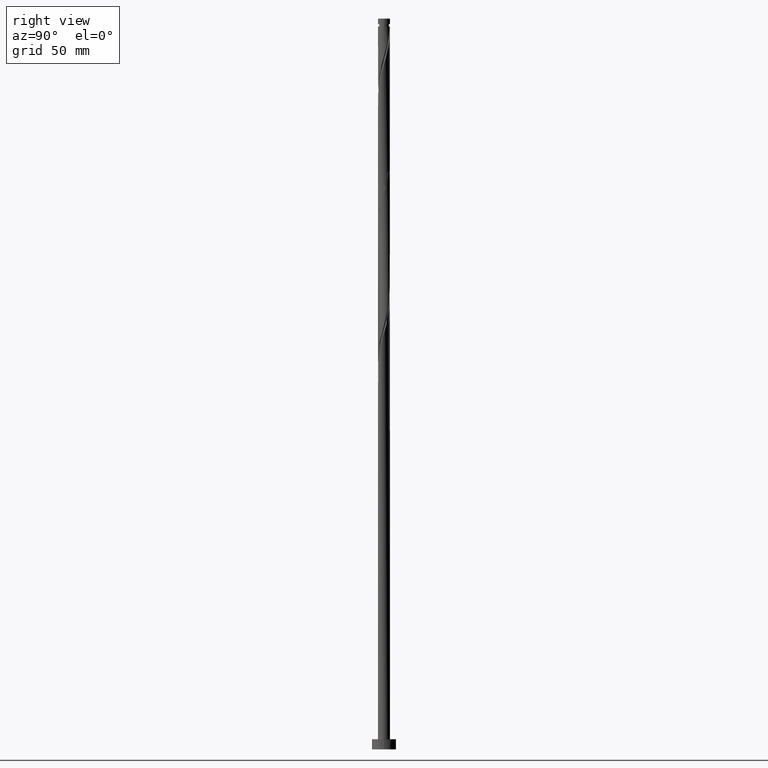
[diagram: clean part render]
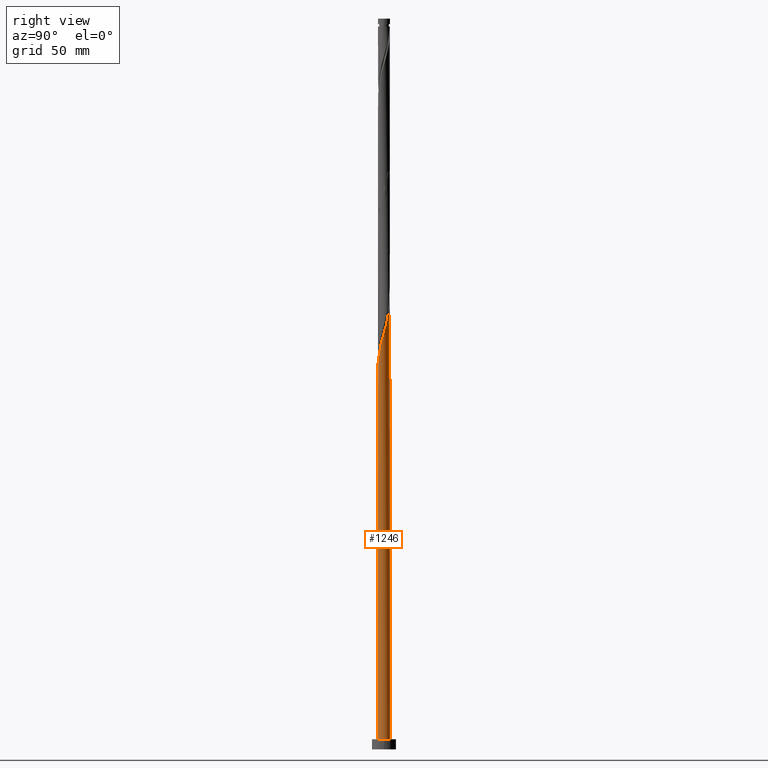
[diagram: same view with one face highlighted and labeled with its STEP entity id]
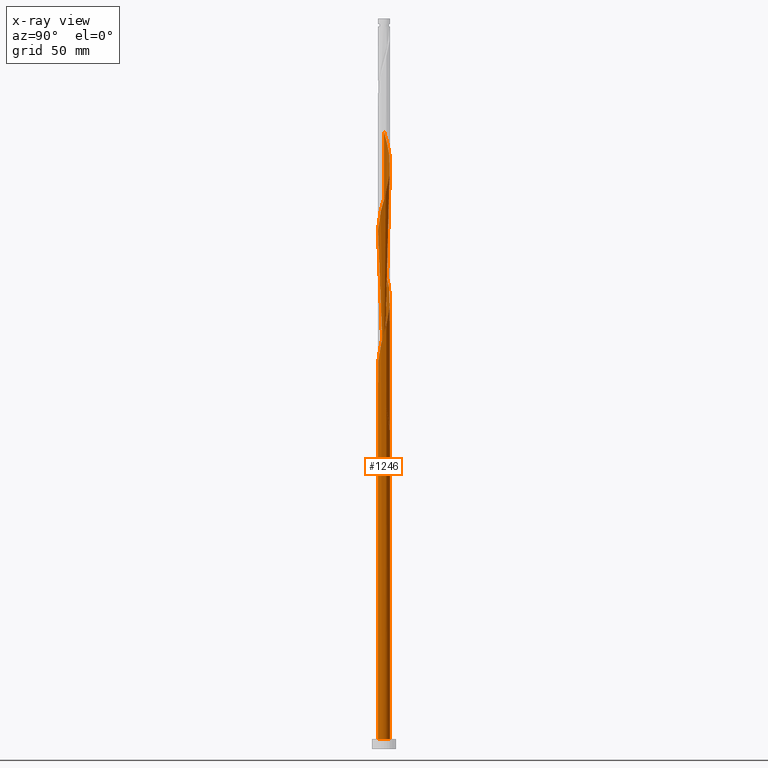
[diagram: x-ray of the same camera — body ghosted, the highlighted face saturated]
A machine part, right view. The second image highlights one B-rep face of the part: STEP entity #1246.
The next image is the same camera in x-ray: the body ghosted, the highlighted face saturated — about 0% of this face is hidden behind the body in this view.
In plain terms, the highlighted cylindrical surface (bore or boss wall) has radius 3 mm, axis along (-0, -0, -1).
Its self-contained STEP definition (entity closure, byte-faithful):
#6 = CARTESIAN_POINT ( 'NONE',  ( 1.484415317302711257, -2.626010904050889661, 261.6444745492087236 ) ) ;
#18 = CARTESIAN_POINT ( 'NONE',  ( -2.986297077045553916, -0.2864083930844389947, 240.5333634380976378 ) ) ;
#21 = CARTESIAN_POINT ( 'NONE',  ( -2.211065689225174768, 2.027606598413813632, 164.9778078825420096 ) ) ;
#28 =( BOUNDED_CURVE ( )  B_SPLINE_CURVE ( 2, ( #873, #124, #140, #842, #1302, #1420, #1016, #1428, #692, #431, #1313, #261, #112, #400, #578, #1273, #1599, #1580, #1283, #729, #1894, #991, #1591, #270, #862, #587, #852, #1885, #1438, #711, #1294, #1878, #467, #604, #30, #1064, #613, #158, #311, #883, #1644, #749, #1629, #1330, #1056, #320, #330, #1035, #894, #438, #300, #1179, #1206, #740, #1323, #1637, #594, #1475, #621, #182, #779, #1172, #18, #1758, #1198, #1777, #1190, #913, #1501, #1619, #1464, #1492, #173, #770, #922, #1485, #1359, #1770, #1351, #1749, #476, #6, #42, #1787, #1026, #460, #49, #446, #1046, #1606, #903, #287, #150, #166, #759, #1340, #1389, #1102, #513, #1396, #341, #971, #1543, #75, #1664, #1110, #799, #378, #1795, #1552, #1251, #1216, #1691, #85, #202, #1522, #1093, #1380, #1826, #1683, #525, #230, #788 ),
 .UNSPECIFIED., .F., .T. ) 
 B_SPLINE_CURVE_WITH_KNOTS ( ( 3, 2, 2, 2, 2, 2, 2, 2, 2, 2, 2, 2, 2, 2, 2, 2, 2, 2, 2, 2, 2, 2, 2, 2, 2, 2, 2, 2, 2, 2, 2, 2, 2, 2, 2, 2, 2, 2, 2, 2, 2, 2, 2, 2, 2, 2, 2, 2, 2, 2, 2, 2, 2, 2, 2, 2, 2, 2, 2, 2, 2, 3 ),
 ( 0.05452860127731152390, 0.05833333333333334814, 0.06666666666666665186, 0.07499999999999995559, 0.08333333333333337034, 0.09166666666666667407, 0.09999999999999997780, 0.1083333333333332815, 0.1166666666666666963, 0.1250000000000000000, 0.1333333333333333037, 0.1416666666666667185, 0.1500000000000000222, 0.1583333333333333259, 0.1666666666666666297, 0.1750000000000000444, 0.1833333333333333481, 0.1916666666666666519, 0.1999999999999999556, 0.2083333333333333703, 0.2166666666666666741, 0.2249999999999999778, 0.2333333333333332815, 0.2416666666666666963, 0.2500000000000000000, 0.2583333333333333037, 0.2666666666666667185, 0.2750000000000000222, 0.2833333333333333259, 0.2916666666666666297, 0.3000000000000000444, 0.3083333333333333481, 0.3166666666666666519, 0.3249999999999999556, 0.3333333333333333703, 0.3416666666666666741, 0.3499999999999999778, 0.3583333333333332815, 0.3666666666666666963, 0.3750000000000000000, 0.3833333333333333037, 0.3916666666666667185, 0.4000000000000000222, 0.4083333333333333259, 0.4166666666666666297, 0.4250000000000000444, 0.4333333333333333481, 0.4416666666666666519, 0.4499999999999999556, 0.4583333333333333703, 0.4666666666666666741, 0.4749999999999999778, 0.4833333333333332815, 0.4916666666666666963, 0.5000000000000000000, 0.5083333333333333037, 0.5166666666666666075, 0.5250000000000000222, 0.5333333333333333259, 0.5416666666666667407, 0.5500000000000000444, 0.5545286012773117390 ),
 .UNSPECIFIED. ) 
 CURVE ( )  GEOMETRIC_REPRESENTATION_ITEM ( )  RATIONAL_B_SPLINE_CURVE ( ( 0.9066196499552464649, 0.9068171577856591892, 0.9090909090909582435, 0.9041108139712062952, 0.9090909090909582435, 0.9041108139712062952, 0.9090909090909582435, 0.9041108139712062952, 0.9090909090909582435, 0.9041108139712062952, 0.9090909090909582435, 0.9041108139712062952, 0.9090909090909582435, 0.9041108139712062952, 0.9090909090909582435, 0.9041108139712062952, 0.9090909090909582435, 0.9041108139712062952, 0.9090909090909582435, 0.9041108139712062952, 0.9090909090909582435, 0.9041108139712062952, 0.9090909090909582435, 0.9041108139712062952, 0.9090909090909582435, 0.9041108139712062952, 0.9090909090909582435, 0.9041108139712062952, 0.9090909090909582435, 0.9041108139712062952, 0.9090909090909582435, 0.9041108139712062952, 0.9090909090909582435, 0.9041108139712062952, 0.9090909090909582435, 0.9041108139712062952, 0.9090909090909582435, 0.9041108139712062952, 0.9090909090909582435, 0.9041108139712062952, 0.9090909090909582435, 0.9041108139712062952, 0.9090909090909582435, 0.9041108139712062952, 0.9090909090909582435, 0.9041108139712062952, 0.9090909090909582435, 0.9041108139712062952, 0.9090909090909582435, 0.9041108139712062952, 0.9090909090909582435, 0.9041108139712062952, 0.9090909090909582435, 0.9041108139712062952, 0.9090909090909582435, 0.9041108139712062952, 0.9090909090909582435, 0.9041108139712062952, 0.9090909090909582435, 0.9041108139712062952, 0.9090909090909582435, 0.9041108139712062952, 0.9090909090909582435, 0.9041108139712062952, 0.9090909090909582435, 0.9041108139712062952, 0.9090909090909582435, 0.9041108139712062952, 0.9090909090909582435, 0.9041108139712062952, 0.9090909090909582435, 0.9041108139712062952, 0.9090909090909582435, 0.9041108139712062952, 0.9090909090909582435, 0.9041108139712062952, 0.9090909090909582435, 0.9041108139712062952, 0.9090909090909582435, 0.9041108139712062952, 0.9090909090909582435, 0.9041108139712062952, 0.9090909090909582435, 0.9041108139712062952, 0.9090909090909582435, 0.9041108139712062952, 0.9090909090909582435, 0.9041108139712062952, 0.9090909090909582435, 0.9041108139712062952, 0.9090909090909582435, 0.9041108139712062952, 0.9090909090909582435, 0.9041108139712062952, 0.9090909090909582435, 0.9041108139712062952, 0.9090909090909582435, 0.9041108139712062952, 0.9090909090909582435, 0.9041108139712062952, 0.9090909090909582435, 0.9041108139712062952, 0.9090909090909582435, 0.9041108139712062952, 0.9090909090909582435, 0.9041108139712062952, 0.9090909090909582435, 0.9041108139712062952, 0.9090909090909582435, 0.9041108139712062952, 0.9090909090909582435, 0.9041108139712062952, 0.9090909090909582435, 0.9041108139712062952, 0.9090909090909582435, 0.9041108139712062952, 0.9090909090909582435, 0.9041108139712062952, 0.9090909090909582435, 0.9041108139712062952, 0.9090909090909582435, 0.9063845652765051275, 0.9066196499552465760 ) ) 
 REPRESENTATION_ITEM ( '' )  );
#30 = CARTESIAN_POINT ( 'NONE',  ( 2.861491667719902487, 0.9010357570982417963, 209.4222523269865519 ) ) ;
#42 = CARTESIAN_POINT ( 'NONE',  ( 1.741185482790980066, -2.443004935426445812, 262.7555856603198663 ) ) ;
#49 = CARTESIAN_POINT ( 'NONE',  ( 2.584311715169903323, -1.523592123514565300, 267.2000301047641528 ) ) ;
#57 = EDGE_CURVE ( 'NONE', #415, #1254, #262, .T. ) ;
#67 = CYLINDRICAL_SURFACE ( 'NONE', #1527, 3.000000000000000444 ) ;
#75 = CARTESIAN_POINT ( 'NONE',  ( 0.9582386936374933661, 2.860279830445438876, 286.0889189936532375 ) ) ;
#80 = CARTESIAN_POINT ( 'NONE',  ( -3.000000000000006217, -3.662361778062896324E-15, 172.8523646390205784 ) ) ;
#85 = CARTESIAN_POINT ( 'NONE',  ( -1.997955648279251095, 2.259998966802001963, 297.2000301047642665 ) ) ;
#86 = VECTOR ( 'NONE', #376, 1000.000000000000000 ) ;
#112 = CARTESIAN_POINT ( 'NONE',  ( -1.245111594254573628, -2.729413328510884806, 184.9778078825420380 ) ) ;
#124 = CARTESIAN_POINT ( 'NONE',  ( -3.000000000000005773, -0.1435319978602511704, 173.3609131645845878 ) ) ;
#125 = DIRECTION ( 'NONE',  ( 1.000000000000000000, 0.000000000000000000, 0.000000000000000000 ) ) ;
#134 = CARTESIAN_POINT ( 'NONE',  ( 0.5969924622639757317, 2.939999999999999947, 158.3111412158753524 ) ) ;
#140 = CARTESIAN_POINT ( 'NONE',  ( -2.986297077045553916, -0.2864083930844389947, 173.8666967714309237 ) ) ;
#142 = CARTESIAN_POINT ( 'NONE',  ( -1.531984494871650559, 2.598546826576327629, 166.0889189936531523 ) ) ;
#150 = CARTESIAN_POINT ( 'NONE',  ( 2.986297077045553916, 0.2864083930844372183, 273.8666967714310090 ) ) ;
#158 = CARTESIAN_POINT ( 'NONE',  ( 2.456461689585825781, 1.750776419202128897, 212.7555856603198947 ) ) ;
#166 = CARTESIAN_POINT ( 'NONE',  ( 2.956194341916743351, 0.6002808636434369127, 274.9778078825420948 ) ) ;
#173 = CARTESIAN_POINT ( 'NONE',  ( -1.245111594254573628, -2.729413328510884806, 251.6444745492087520 ) ) ;
#182 = CARTESIAN_POINT ( 'NONE',  ( -2.944774136347771964, 0.6540087066196512700, 237.2000301047643518 ) ) ;
#200 = CARTESIAN_POINT ( 'NONE',  ( -2.766788993523056295, 1.201790650553047346, 172.7555856603198094 ) ) ;
#202 = CARTESIAN_POINT ( 'NONE',  ( -2.211065689225174768, 2.027606598413813632, 298.3111412158753524 ) ) ;
#207 = ORIENTED_EDGE ( 'NONE', *, *, #57, .T. ) ;
#219 = DIRECTION ( 'NONE',  ( -1.000000000000000000, 0.000000000000000000, 0.000000000000000000 ) ) ;
#228 = CARTESIAN_POINT ( 'NONE',  ( -0.9582386936374898134, 2.860279830445434879, 163.8666967714308953 ) ) ;
#230 = CARTESIAN_POINT ( 'NONE',  ( -3.000000000000007550, 0.1709212123392876426, 305.5801066629693423 ) ) ;
#248 = EDGE_CURVE ( 'NONE', #519, #415, #751, .T. ) ;
#249 = CARTESIAN_POINT ( 'NONE',  ( -0.3426132633519626269, 2.997004880578669095, 161.6444745492087236 ) ) ;
#261 = CARTESIAN_POINT ( 'NONE',  ( -1.531984494871655222, -2.598546826576330293, 183.8666967714310090 ) ) ;
#262 = CIRCLE ( 'NONE', #1523, 3.000000000000000444 ) ;
#270 = CARTESIAN_POINT ( 'NONE',  ( 1.997955648279250651, -2.259998966802002407, 197.2000301047642949 ) ) ;
#281 = EDGE_CURVE ( 'NONE', #836, #909, #1421, .T. ) ;
#287 = CARTESIAN_POINT ( 'NONE',  ( 3.016399812174366701, -0.02746407747455972478, 272.7555856603198094 ) ) ;
#300 = CARTESIAN_POINT ( 'NONE',  ( -1.195207115623888150, 2.751632233922633120, 227.2000301047642381 ) ) ;
#304 = CARTESIAN_POINT ( 'NONE',  ( -1.997955648279251095, 2.259998966802001963, 163.8666967714309521 ) ) ;
#311 = CARTESIAN_POINT ( 'NONE',  ( 2.247618455994266906, 1.987010638188426048, 213.8666967714310090 ) ) ;
#320 = CARTESIAN_POINT ( 'NONE',  ( 0.3426132633519646808, 2.997004880578675756, 221.6444745492088089 ) ) ;
#330 = CARTESIAN_POINT ( 'NONE',  ( 0.02731362638454045214, 2.999875658392153532, 222.7555856603198094 ) ) ;
#333 = CARTESIAN_POINT ( 'NONE',  ( -2.424175730171097776, 1.795214230025626634, 166.0889189936532091 ) ) ;
#341 = CARTESIAN_POINT ( 'NONE',  ( 1.785379858637182071, 2.410895841875527079, 282.7555856603198663 ) ) ;
#367 = CARTESIAN_POINT ( 'NONE',  ( -2.611625341554438151, 1.476283534877586900, 171.6444745492087236 ) ) ;
#376 = DIRECTION ( 'NONE',  ( -0.000000000000000000, -0.000000000000000000, -1.000000000000000000 ) ) ;
#378 = CARTESIAN_POINT ( 'NONE',  ( -0.2879860105828835892, 3.002746436205634861, 290.5333634380976378 ) ) ;
#400 = CARTESIAN_POINT ( 'NONE',  ( -0.9582386936374928110, -2.860279830445438876, 186.0889189936531523 ) ) ;
#415 = VERTEX_POINT ( 'NONE', #1354 ) ;
#422 = AXIS2_PLACEMENT_3D ( 'NONE', #999, #1579, #1293 ) ;
#431 = CARTESIAN_POINT ( 'NONE',  ( -2.038775222402708032, -2.223244857174726530, 181.6444745492087804 ) ) ;
#438 = CARTESIAN_POINT ( 'NONE',  ( -0.9059989139450649320, 2.877253563794376578, 226.0889189936531238 ) ) ;
#446 = CARTESIAN_POINT ( 'NONE',  ( 2.744447700168711535, -1.251970017003503299, 268.3111412158754092 ) ) ;
#448 = CARTESIAN_POINT ( 'NONE',  ( -1.195207115623888150, 2.751632233922633120, 160.5333634380976093 ) ) ;
#460 = CARTESIAN_POINT ( 'NONE',  ( 2.424175730171096887, -1.795214230025627078, 266.0889189936532375 ) ) ;
#467 = CARTESIAN_POINT ( 'NONE',  ( 2.986297077045553916, 0.2864083930844372183, 207.2000301047642949 ) ) ;
#476 = CARTESIAN_POINT ( 'NONE',  ( 1.195207115623887040, -2.751632233922633564, 260.5333634380975809 ) ) ;
#486 = LINE ( 'NONE', #1816, #1617 ) ;
#492 = ORIENTED_EDGE ( 'NONE', *, *, #1331, .F. ) ;
#513 = CARTESIAN_POINT ( 'NONE',  ( 2.247618455994266906, 1.987010638188426048, 280.5333634380976378 ) ) ;
#514 = CIRCLE ( 'NONE', #422, 3.000000000000000444 ) ;
#519 = VERTEX_POINT ( 'NONE', #80 ) ;
#525 = CARTESIAN_POINT ( 'NONE',  ( -2.980586974261070221, 0.3407363920471045415, 304.9778078825419811 ) ) ;
#544 = VERTEX_POINT ( 'NONE', #780 ) ;
#578 = CARTESIAN_POINT ( 'NONE',  ( -0.6504259784947288292, -2.928642355512055762, 187.2000301047642665 ) ) ;
#587 = CARTESIAN_POINT ( 'NONE',  ( 2.424175730171096887, -1.795214230025627078, 199.4222523269865803 ) ) ;
#594 = CARTESIAN_POINT ( 'NONE',  ( -2.584311715169903323, 1.523592123514564856, 233.8666967714309806 ) ) ;
#595 = EDGE_CURVE ( 'NONE', #1254, #415, #514, .T. ) ;
#604 = CARTESIAN_POINT ( 'NONE',  ( 2.956194341916743351, 0.6002808636434369127, 208.3111412158754092 ) ) ;
#613 = CARTESIAN_POINT ( 'NONE',  ( 2.611625341554443480, 1.476283534877588899, 211.6444745492086668 ) ) ;
#614 = CARTESIAN_POINT ( 'NONE',  ( -3.000000000000000444, 0.000000000000000000, 362.1999999999999886 ) ) ;
#621 = CARTESIAN_POINT ( 'NONE',  ( -2.844610918258241306, 0.9529893618115772291, 236.0889189936531238 ) ) ;
#631 = DIRECTION ( 'NONE',  ( -1.000000000000000000, 0.000000000000000000, 0.000000000000000000 ) ) ;
#640 = CIRCLE ( 'NONE', #1829, 3.000000000000000444 ) ;
#654 = ORIENTED_EDGE ( 'NONE', *, *, #595, .T. ) ;
#660 = CARTESIAN_POINT ( 'NONE',  ( 0.000000000000000000, 0.000000000000000000, 362.1999999999999886 ) ) ;
#692 = CARTESIAN_POINT ( 'NONE',  ( -2.247618455994265574, -1.987010638188427381, 180.5333634380975809 ) ) ;
#696 = CARTESIAN_POINT ( 'NONE',  ( -3.000000000000000444, 0.1435319978602478674, 176.5947026004994882 ) ) ;
#711 = CARTESIAN_POINT ( 'NONE',  ( 2.944774136347771520, -0.6540087066196529353, 203.8666967714309237 ) ) ;
#729 = CARTESIAN_POINT ( 'NONE',  ( 0.9059989139450639328, -2.877253563794377911, 192.7555856603198379 ) ) ;
#740 = CARTESIAN_POINT ( 'NONE',  ( -1.997955648279251095, 2.259998966802001963, 230.5333634380976378 ) ) ;
#749 = CARTESIAN_POINT ( 'NONE',  ( 1.531984494871656111, 2.598546826576329849, 217.2000301047642949 ) ) ;
#751 = LINE ( 'NONE', #614, #86 ) ;
#759 = CARTESIAN_POINT ( 'NONE',  ( 2.861491667719902487, 0.9010357570982417963, 276.0889189936531238 ) ) ;
#770 = CARTESIAN_POINT ( 'NONE',  ( -0.9582386936374928110, -2.860279830445438876, 252.7555856603198663 ) ) ;
#779 = CARTESIAN_POINT ( 'NONE',  ( -2.980586974261070221, 0.3407363920471045415, 238.3111412158753808 ) ) ;
#780 = CARTESIAN_POINT ( 'NONE',  ( -3.000000000000006217, -1.420099464963164179E-15, 306.1856979723539780 ) ) ;
#782 = CARTESIAN_POINT ( 'NONE',  ( -2.944774136347771964, 0.6540087066196512700, 170.5333634380976662 ) ) ;
#784 = VERTEX_POINT ( 'NONE', #1759 ) ;
#788 = CARTESIAN_POINT ( 'NONE',  ( -3.000000000000006217, -1.420099464963164179E-15, 306.1856979723539780 ) ) ;
#799 = CARTESIAN_POINT ( 'NONE',  ( 0.02731362638454045214, 2.999875658392153532, 289.4222523269865519 ) ) ;
#806 = CARTESIAN_POINT ( 'NONE',  ( 3.000000000000000444, 0.000000000000000000, 5.000000000000000000 ) ) ;
#812 =( BOUNDED_CURVE ( )  B_SPLINE_CURVE ( 2, ( #896, #1504, #448, #1623, #1352, #304, #21, #333, #1075, #1658, #1478, #782, #1467, #1182, #1761 ),
 .UNSPECIFIED., .F., .T. ) 
 B_SPLINE_CURVE_WITH_KNOTS ( ( 3, 2, 2, 2, 2, 2, 2, 3 ),
 ( 0.000000000000000000, 0.008333333333333303727, 0.01666666666666671848, 0.02500000000000002220, 0.03333333333333332593, 0.04166666666666662966, 0.05000000000000004441, 0.05452860127731152390 ),
 .UNSPECIFIED. ) 
 CURVE ( )  GEOMETRIC_REPRESENTATION_ITEM ( )  RATIONAL_B_SPLINE_CURVE ( ( 0.9090909090909582435, 0.9041108139712062952, 0.9090909090909582435, 0.9041108139712062952, 0.9090909090909582435, 0.9041108139712062952, 0.9090909090909582435, 0.9041108139712062952, 0.9090909090909582435, 0.9041108139712062952, 0.9090909090909582435, 0.9041108139712062952, 0.9090909090909582435, 0.9063845652765052385, 0.9066196499552464649 ) ) 
 REPRESENTATION_ITEM ( '' )  );
#823 = FACE_OUTER_BOUND ( 'NONE', #1669, .T. ) ;
#836 = VERTEX_POINT ( 'NONE', #1404 ) ;
#842 = CARTESIAN_POINT ( 'NONE',  ( -2.956194341916743351, -0.6002808636434372458, 174.9778078825420948 ) ) ;
#852 = CARTESIAN_POINT ( 'NONE',  ( 2.584311715169903323, -1.523592123514565300, 200.5333634380976378 ) ) ;
#862 = CARTESIAN_POINT ( 'NONE',  ( 2.211065689225173880, -2.027606598413813632, 198.3111412158753524 ) ) ;
#867 = CARTESIAN_POINT ( 'NONE',  ( -0.02731362638453822128, 2.999875658392149536, 160.5333634380975809 ) ) ;
#873 = CARTESIAN_POINT ( 'NONE',  ( -3.000000000000006217, -3.662361778062896324E-15, 172.8523646390206068 ) ) ;
#883 = CARTESIAN_POINT ( 'NONE',  ( 2.038775222402708476, 2.223244857174726530, 214.9778078825420948 ) ) ;
#894 = CARTESIAN_POINT ( 'NONE',  ( -0.5969924622639745104, 2.940000000000005276, 224.9778078825420380 ) ) ;
#896 = CARTESIAN_POINT ( 'NONE',  ( -0.5969924622639745104, 2.940000000000004832, 158.3111412158753524 ) ) ;
#903 = CARTESIAN_POINT ( 'NONE',  ( 2.980586974261070221, -0.3407363920471048746, 271.6444745492087236 ) ) ;
#909 = VERTEX_POINT ( 'NONE', #924 ) ;
#913 = CARTESIAN_POINT ( 'NONE',  ( -2.456461689585824892, -1.750776419202130452, 246.0889189936532091 ) ) ;
#914 = EDGE_CURVE ( 'NONE', #784, #519, #812, .T. ) ;
#922 = CARTESIAN_POINT ( 'NONE',  ( -0.6504259784947288292, -2.928642355512055762, 253.8666967714309237 ) ) ;
#924 = CARTESIAN_POINT ( 'NONE',  ( 0.5969924622639756207, 2.939999999999999947, 158.3111412158753524 ) ) ;
#960 = CARTESIAN_POINT ( 'NONE',  ( -2.456461689585819119, 1.750776419202128009, 170.5333634380976378 ) ) ;
#962 = DIRECTION ( 'NONE',  ( -0.000000000000000000, -0.000000000000000000, -1.000000000000000000 ) ) ;
#971 = CARTESIAN_POINT ( 'NONE',  ( 1.531984494871656111, 2.598546826576329849, 283.8666967714310090 ) ) ;
#991 = CARTESIAN_POINT ( 'NONE',  ( 1.484415317302711257, -2.626010904050889661, 194.9778078825420664 ) ) ;
#999 = CARTESIAN_POINT ( 'NONE',  ( 0.000000000000000000, 0.000000000000000000, 5.000000000000000000 ) ) ;
#1016 = CARTESIAN_POINT ( 'NONE',  ( -2.611625341554443480, -1.476283534877589121, 178.3111412158753808 ) ) ;
#1026 = CARTESIAN_POINT ( 'NONE',  ( 2.211065689225173880, -2.027606598413813632, 264.9778078825420948 ) ) ;
#1035 = CARTESIAN_POINT ( 'NONE',  ( -0.2879860105828835892, 3.002746436205634861, 223.8666967714309521 ) ) ;
#1046 = CARTESIAN_POINT ( 'NONE',  ( 2.844610918258241306, -0.9529893618115781173, 269.4222523269864951 ) ) ;
#1056 = CARTESIAN_POINT ( 'NONE',  ( 0.6504259784947302725, 2.928642355512054873, 220.5333634380976093 ) ) ;
#1064 = CARTESIAN_POINT ( 'NONE',  ( 2.766788993523063400, 1.201790650553046680, 210.5333634380976093 ) ) ;
#1075 = CARTESIAN_POINT ( 'NONE',  ( -2.584311715169903323, 1.523592123514564856, 167.2000301047642949 ) ) ;
#1077 = ORIENTED_EDGE ( 'NONE', *, *, #281, .F. ) ;
#1093 = CARTESIAN_POINT ( 'NONE',  ( -2.584311715169903323, 1.523592123514564856, 300.5333634380976378 ) ) ;
#1102 = CARTESIAN_POINT ( 'NONE',  ( 2.456461689585825781, 1.750776419202128897, 279.4222523269864951 ) ) ;
#1110 = CARTESIAN_POINT ( 'NONE',  ( 0.3426132633519646808, 2.997004880578675756, 288.3111412158754092 ) ) ;
#1126 = CARTESIAN_POINT ( 'NONE',  ( -2.247618455994262021, 1.987010638188425604, 169.4222523269865235 ) ) ;
#1172 = CARTESIAN_POINT ( 'NONE',  ( -3.016399812174366701, 0.02746407747455865966, 239.4222523269865803 ) ) ;
#1179 = CARTESIAN_POINT ( 'NONE',  ( -1.484415317302711257, 2.626010904050889661, 228.3111412158754092 ) ) ;
#1182 = CARTESIAN_POINT ( 'NONE',  ( -3.000000000000006217, 0.1709212123392956917, 172.2467733296359995 ) ) ;
#1190 = CARTESIAN_POINT ( 'NONE',  ( -2.611625341554443480, -1.476283534877589121, 244.9778078825420380 ) ) ;
#1198 = CARTESIAN_POINT ( 'NONE',  ( -2.861491667719902487, -0.9010357570982424624, 242.7555856603198379 ) ) ;
#1206 = CARTESIAN_POINT ( 'NONE',  ( -1.741185482790981176, 2.443004935426444924, 229.4222523269865235 ) ) ;
#1214 = EDGE_CURVE ( 'NONE', #519, #544, #28, .T. ) ;
#1216 = CARTESIAN_POINT ( 'NONE',  ( -1.484415317302711257, 2.626010904050889661, 294.9778078825421517 ) ) ;
#1223 = DIRECTION ( 'NONE',  ( -0.000000000000000000, -0.000000000000000000, -1.000000000000000000 ) ) ;
#1230 = DIRECTION ( 'NONE',  ( 0.000000000000000000, -0.000000000000000000, -1.000000000000000000 ) ) ;
#1238 = CARTESIAN_POINT ( 'NONE',  ( -2.986297077045549475, 0.2864083930844399939, 176.0889189936531523 ) ) ;
#1246 = ADVANCED_FACE ( 'NONE', ( #823 ), #67, .T. ) ;
#1249 = CARTESIAN_POINT ( 'NONE',  ( -1.245111594254570742, 2.729413328510881254, 164.9778078825420096 ) ) ;
#1251 = CARTESIAN_POINT ( 'NONE',  ( -1.195207115623888150, 2.751632233922633120, 293.8666967714308953 ) ) ;
#1254 = VERTEX_POINT ( 'NONE', #806 ) ;
#1266 = CARTESIAN_POINT ( 'NONE',  ( -1.785379858637176964, 2.410895841875524415, 167.2000301047642665 ) ) ;
#1267 = CARTESIAN_POINT ( 'NONE',  ( -3.000000000000000888, -3.363393469649623265E-15, 177.1032511260635545 ) ) ;
#1273 = CARTESIAN_POINT ( 'NONE',  ( -0.3426132633519641257, -2.997004880578675756, 188.3111412158753808 ) ) ;
#1283 = CARTESIAN_POINT ( 'NONE',  ( 0.5969924622639751766, -2.940000000000005276, 191.6444745492087236 ) ) ;
#1284 = DIRECTION ( 'NONE',  ( 0.000000000000000000, 0.000000000000000000, 1.000000000000000000 ) ) ;
#1293 = DIRECTION ( 'NONE',  ( 1.000000000000000000, 0.000000000000000000, 0.000000000000000000 ) ) ;
#1294 = CARTESIAN_POINT ( 'NONE',  ( 2.980586974261070221, -0.3407363920471048746, 204.9778078825420948 ) ) ;
#1302 = CARTESIAN_POINT ( 'NONE',  ( -2.861491667719902487, -0.9010357570982424624, 176.0889189936531523 ) ) ;
#1306 = EDGE_CURVE ( 'NONE', #784, #909, #640, .T. ) ;
#1313 = CARTESIAN_POINT ( 'NONE',  ( -1.785379858637181627, -2.410895841875527967, 182.7555856603198379 ) ) ;
#1321 = ORIENTED_EDGE ( 'NONE', *, *, #1306, .T. ) ;
#1323 = CARTESIAN_POINT ( 'NONE',  ( -2.211065689225174768, 2.027606598413813632, 231.6444745492086952 ) ) ;
#1330 = CARTESIAN_POINT ( 'NONE',  ( 0.9582386936374933661, 2.860279830445438876, 219.4222523269864951 ) ) ;
#1331 = EDGE_CURVE ( 'NONE', #544, #836, #486, .T. ) ;
#1332 = ORIENTED_EDGE ( 'NONE', *, *, #248, .T. ) ;
#1340 = CARTESIAN_POINT ( 'NONE',  ( 2.766788993523063400, 1.201790650553046680, 277.2000301047642665 ) ) ;
#1351 = CARTESIAN_POINT ( 'NONE',  ( 0.5969924622639751766, -2.940000000000005276, 258.3111412158754092 ) ) ;
#1352 = CARTESIAN_POINT ( 'NONE',  ( -1.741185482790981176, 2.443004935426444924, 162.7555856603198379 ) ) ;
#1354 = CARTESIAN_POINT ( 'NONE',  ( -3.000000000000000444, 0.000000000000000000, 5.000000000000000000 ) ) ;
#1359 = CARTESIAN_POINT ( 'NONE',  ( -0.02731362638454002192, -2.999875658392153532, 256.0889189936532375 ) ) ;
#1380 = CARTESIAN_POINT ( 'NONE',  ( -2.744447700168711091, 1.251970017003503299, 301.6444745492088373 ) ) ;
#1383 = ORIENTED_EDGE ( 'NONE', *, *, #1214, .F. ) ;
#1389 = CARTESIAN_POINT ( 'NONE',  ( 2.611625341554443480, 1.476283534877588899, 278.3111412158753524 ) ) ;
#1396 = CARTESIAN_POINT ( 'NONE',  ( 2.038775222402708476, 2.223244857174726530, 281.6444745492087804 ) ) ;
#1404 = CARTESIAN_POINT ( 'NONE',  ( -3.000000000000000888, -3.363393469649623265E-15, 177.1032511260635545 ) ) ;
#1409 = CARTESIAN_POINT ( 'NONE',  ( 0.000000000000000000, 0.000000000000000000, 158.3111412158753524 ) ) ;
#1420 = CARTESIAN_POINT ( 'NONE',  ( -2.766788993523062956, -1.201790650553047790, 177.2000301047642381 ) ) ;
#1421 =( BOUNDED_CURVE ( )  B_SPLINE_CURVE ( 2, ( #1267, #696, #1238, #1864, #1584, #200, #367, #960, #1126, #1698, #1266, #142, #1249, #228, #1710, #249, #867, #1450, #134 ),
 .UNSPECIFIED., .F., .T. ) 
 B_SPLINE_CURVE_WITH_KNOTS ( ( 3, 2, 2, 2, 2, 2, 2, 2, 2, 3 ),
 ( 0.9295286012773114059, 0.9333333333333333481, 0.9416666666666666519, 0.9499999999999999556, 0.9583333333333333703, 0.9666666666666666741, 0.9749999999999999778, 0.9833333333333332815, 0.9916666666666666963, 1.000000000000000000 ),
 .UNSPECIFIED. ) 
 CURVE ( )  GEOMETRIC_REPRESENTATION_ITEM ( )  RATIONAL_B_SPLINE_CURVE ( ( 0.9066196499552399146, 0.9068171577856526389, 0.9090909090909515822, 0.9041108139711998559, 0.9090909090909515822, 0.9041108139711998559, 0.9090909090909515822, 0.9041108139711998559, 0.9090909090909515822, 0.9041108139711998559, 0.9090909090909515822, 0.9041108139711998559, 0.9090909090909515822, 0.9041108139711998559, 0.9090909090909515822, 0.9041108139711998559, 0.9090909090909515822, 0.9041108139711998559, 0.9090909090909515822 ) ) 
 REPRESENTATION_ITEM ( '' )  );
#1428 = CARTESIAN_POINT ( 'NONE',  ( -2.456461689585824892, -1.750776419202130452, 179.4222523269865235 ) ) ;
#1438 = CARTESIAN_POINT ( 'NONE',  ( 2.844610918258241306, -0.9529893618115781173, 202.7555856603198379 ) ) ;
#1450 = CARTESIAN_POINT ( 'NONE',  ( 0.2879860105828861427, 3.002746436205627756, 159.4222523269864951 ) ) ;
#1464 = CARTESIAN_POINT ( 'NONE',  ( -1.785379858637181627, -2.410895841875527967, 249.4222523269864951 ) ) ;
#1467 = CARTESIAN_POINT ( 'NONE',  ( -2.980586974261070221, 0.3407363920471045415, 171.6444745492086952 ) ) ;
#1475 = CARTESIAN_POINT ( 'NONE',  ( -2.744447700168711091, 1.251970017003503299, 234.9778078825420380 ) ) ;
#1478 = CARTESIAN_POINT ( 'NONE',  ( -2.844610918258241306, 0.9529893618115772291, 169.4222523269865235 ) ) ;
#1485 = CARTESIAN_POINT ( 'NONE',  ( -0.3426132633519641257, -2.997004880578675756, 254.9778078825420096 ) ) ;
#1492 = CARTESIAN_POINT ( 'NONE',  ( -1.531984494871655222, -2.598546826576330293, 250.5333634380976662 ) ) ;
#1501 = CARTESIAN_POINT ( 'NONE',  ( -2.247618455994265574, -1.987010638188427381, 247.2000301047642949 ) ) ;
#1504 = CARTESIAN_POINT ( 'NONE',  ( -0.9059989139450649320, 2.877253563794376578, 159.4222523269864951 ) ) ;
#1516 = ORIENTED_EDGE ( 'NONE', *, *, #914, .F. ) ;
#1522 = CARTESIAN_POINT ( 'NONE',  ( -2.424175730171097776, 1.795214230025626634, 299.4222523269865519 ) ) ;
#1523 = AXIS2_PLACEMENT_3D ( 'NONE', #1659, #1284, #125 ) ;
#1527 = AXIS2_PLACEMENT_3D ( 'NONE', #660, #1223, #219 ) ;
#1543 = CARTESIAN_POINT ( 'NONE',  ( 1.245111594254573628, 2.729413328510884806, 284.9778078825420380 ) ) ;
#1552 = CARTESIAN_POINT ( 'NONE',  ( -0.9059989139450649320, 2.877253563794376578, 292.7555856603198094 ) ) ;
#1563 = ORIENTED_EDGE ( 'NONE', *, *, #248, .F. ) ;
#1579 = DIRECTION ( 'NONE',  ( 0.000000000000000000, 0.000000000000000000, 1.000000000000000000 ) ) ;
#1580 = CARTESIAN_POINT ( 'NONE',  ( 0.2879860105828854211, -3.002746436205633973, 190.5333634380976662 ) ) ;
#1584 = CARTESIAN_POINT ( 'NONE',  ( -2.861491667719897158, 0.9010357570982423514, 173.8666967714309521 ) ) ;
#1591 = CARTESIAN_POINT ( 'NONE',  ( 1.741185482790980066, -2.443004935426445812, 196.0889189936531523 ) ) ;
#1599 = CARTESIAN_POINT ( 'NONE',  ( -0.02731362638454002192, -2.999875658392153532, 189.4222523269864382 ) ) ;
#1606 = CARTESIAN_POINT ( 'NONE',  ( 2.944774136347771520, -0.6540087066196529353, 270.5333634380976946 ) ) ;
#1617 = VECTOR ( 'NONE', #962, 1000.000000000000000 ) ;
#1619 = CARTESIAN_POINT ( 'NONE',  ( -2.038775222402708032, -2.223244857174726530, 248.3111412158754092 ) ) ;
#1623 = CARTESIAN_POINT ( 'NONE',  ( -1.484415317302711257, 2.626010904050889661, 161.6444745492087804 ) ) ;
#1629 = CARTESIAN_POINT ( 'NONE',  ( 1.245111594254573628, 2.729413328510884806, 218.3111412158753808 ) ) ;
#1637 = CARTESIAN_POINT ( 'NONE',  ( -2.424175730171097776, 1.795214230025626634, 232.7555856603198947 ) ) ;
#1644 = CARTESIAN_POINT ( 'NONE',  ( 1.785379858637182071, 2.410895841875527079, 216.0889189936531807 ) ) ;
#1658 = CARTESIAN_POINT ( 'NONE',  ( -2.744447700168711091, 1.251970017003503299, 168.3111412158754092 ) ) ;
#1659 = CARTESIAN_POINT ( 'NONE',  ( 0.000000000000000000, 0.000000000000000000, 5.000000000000000000 ) ) ;
#1664 = CARTESIAN_POINT ( 'NONE',  ( 0.6504259784947302725, 2.928642355512054873, 287.2000301047642097 ) ) ;
#1669 = EDGE_LOOP ( 'NONE', ( #492, #1383, #1332, #207, #654, #1563, #1516, #1321, #1077 ) ) ;
#1683 = CARTESIAN_POINT ( 'NONE',  ( -2.944774136347771964, 0.6540087066196512700, 303.8666967714309521 ) ) ;
#1691 = CARTESIAN_POINT ( 'NONE',  ( -1.741185482790981176, 2.443004935426444924, 296.0889189936531238 ) ) ;
#1698 = CARTESIAN_POINT ( 'NONE',  ( -2.038775222402704035, 2.223244857174722977, 168.3111412158753808 ) ) ;
#1710 = CARTESIAN_POINT ( 'NONE',  ( -0.6504259784947262757, 2.928642355512051321, 162.7555856603198094 ) ) ;
#1749 = CARTESIAN_POINT ( 'NONE',  ( 0.9059989139450639328, -2.877253563794377911, 259.4222523269864951 ) ) ;
#1758 = CARTESIAN_POINT ( 'NONE',  ( -2.956194341916743351, -0.6002808636434372458, 241.6444745492087520 ) ) ;
#1759 = CARTESIAN_POINT ( 'NONE',  ( -0.5969924622639746215, 2.940000000000004832, 158.3111412158753524 ) ) ;
#1761 = CARTESIAN_POINT ( 'NONE',  ( -3.000000000000006217, -3.662361778062896324E-15, 172.8523646390206068 ) ) ;
#1770 = CARTESIAN_POINT ( 'NONE',  ( 0.2879860105828854211, -3.002746436205633973, 257.2000301047642665 ) ) ;
#1777 = CARTESIAN_POINT ( 'NONE',  ( -2.766788993523062956, -1.201790650553047790, 243.8666967714309237 ) ) ;
#1787 = CARTESIAN_POINT ( 'NONE',  ( 1.997955648279250651, -2.259998966802002407, 263.8666967714310090 ) ) ;
#1795 = CARTESIAN_POINT ( 'NONE',  ( -0.5969924622639745104, 2.940000000000005276, 291.6444745492087804 ) ) ;
#1816 = CARTESIAN_POINT ( 'NONE',  ( -3.000000000000000444, 0.000000000000000000, 362.1999999999999886 ) ) ;
#1826 = CARTESIAN_POINT ( 'NONE',  ( -2.844610918258241306, 0.9529893618115772291, 302.7555856603198094 ) ) ;
#1829 = AXIS2_PLACEMENT_3D ( 'NONE', #1409, #1230, #631 ) ;
#1864 = CARTESIAN_POINT ( 'NONE',  ( -2.956194341916737578, 0.6002808636434369127, 174.9778078825420664 ) ) ;
#1878 = CARTESIAN_POINT ( 'NONE',  ( 3.016399812174366701, -0.02746407747455972478, 206.0889189936532091 ) ) ;
#1885 = CARTESIAN_POINT ( 'NONE',  ( 2.744447700168711535, -1.251970017003503299, 201.6444745492086952 ) ) ;
#1894 = CARTESIAN_POINT ( 'NONE',  ( 1.195207115623887040, -2.751632233922633564, 193.8666967714309237 ) ) ;